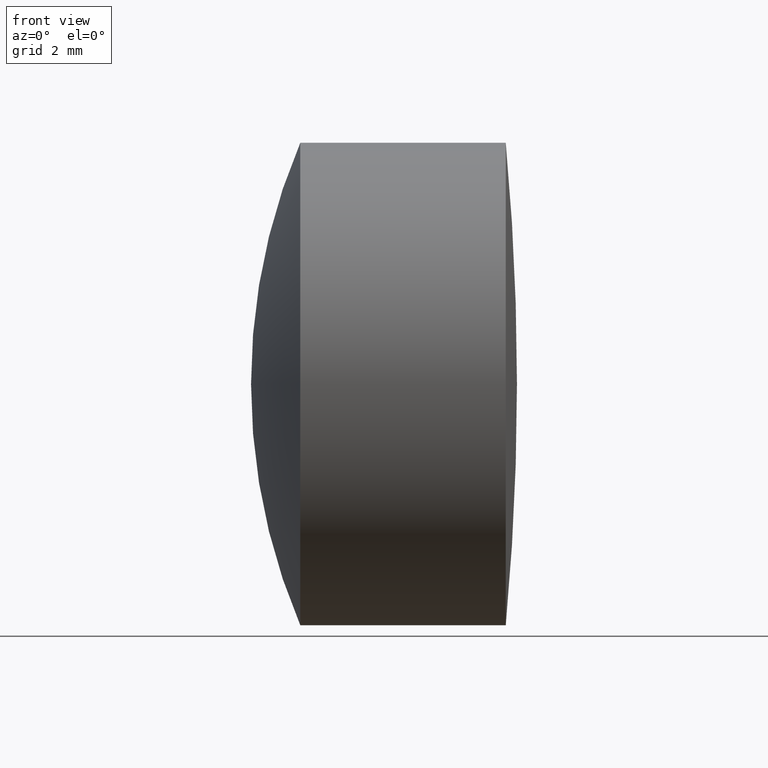
[diagram: clean part render]
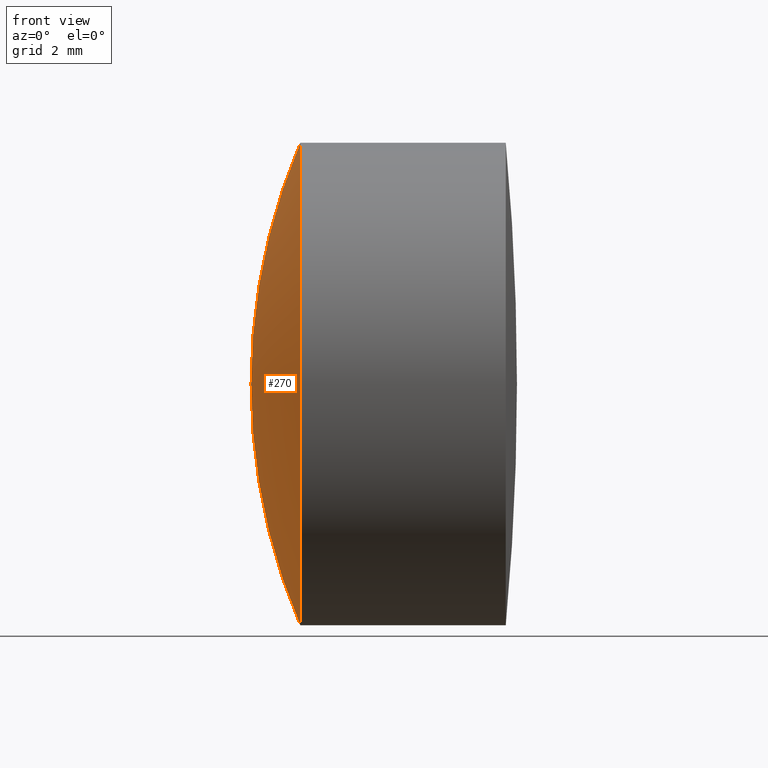
[diagram: same view with one face highlighted and labeled with its STEP entity id]
A machine part, front view. The second image highlights one B-rep face of the part: STEP entity #270.
In plain terms, the highlighted spherical surface has radius 16.2 mm.
Its self-contained STEP definition (entity closure, byte-faithful):
#6 = FACE_OUTER_BOUND ( 'NONE', #289, .T. ) ;
#9 = EDGE_CURVE ( 'NONE', #79, #324, #100, .T. ) ;
#27 = CARTESIAN_POINT ( 'NONE',  ( 269.0089566504702200, 0.0000000000000000000, -2.334349788578312700E-015 ) ) ;
#32 = CARTESIAN_POINT ( 'NONE',  ( 285.2089566504702100, 0.0000000000000000000, -3.326313695887668000E-015 ) ) ;
#52 = SPHERICAL_SURFACE ( 'NONE', #280, 16.19999999999998500 ) ;
#61 = CARTESIAN_POINT ( 'NONE',  ( 270.3053497044990600, 0.0000000000000000000, 0.0000000000000000000 ) ) ;
#69 = CARTESIAN_POINT ( 'NONE',  ( 270.3053497044990600, 7.776507174585691200E-016, -6.350000000000001400 ) ) ;
#79 = VERTEX_POINT ( 'NONE', #113 ) ;
#91 = AXIS2_PLACEMENT_3D ( 'NONE', #260, #312, #310 ) ;
#94 = VERTEX_POINT ( 'NONE', #69 ) ;
#100 = CIRCLE ( 'NONE', #91, 16.19999999999998500 ) ;
#113 = CARTESIAN_POINT ( 'NONE',  ( 270.3053497044990600, 0.0000000000000000000, 6.349999999999997900 ) ) ;
#157 = CARTESIAN_POINT ( 'NONE',  ( 285.2089566504702100, 0.0000000000000000000, -3.326313695887668000E-015 ) ) ;
#173 = AXIS2_PLACEMENT_3D ( 'NONE', #32, #176, #308 ) ;
#176 = DIRECTION ( 'NONE',  ( -0.0000000000000000000, 1.000000000000000000, 1.224646799147353200E-016 ) ) ;
#188 = ORIENTED_EDGE ( 'NONE', *, *, #267, .F. ) ;
#195 = ORIENTED_EDGE ( 'NONE', *, *, #9, .T. ) ;
#197 = EDGE_CURVE ( 'NONE', #94, #79, #205, .T. ) ;
#205 = CIRCLE ( 'NONE', #217, 6.349999999999996100 ) ;
#217 = AXIS2_PLACEMENT_3D ( 'NONE', #61, #333, #281 ) ;
#260 = CARTESIAN_POINT ( 'NONE',  ( 285.2089566504702100, 0.0000000000000000000, -3.326313695887668000E-015 ) ) ;
#267 = EDGE_CURVE ( 'NONE', #94, #324, #303, .T. ) ;
#270 = ADVANCED_FACE ( 'NONE', ( #6 ), #52, .T. ) ;
#280 = AXIS2_PLACEMENT_3D ( 'NONE', #157, #347, #337 ) ;
#281 = DIRECTION ( 'NONE',  ( 0.0000000000000000000, 0.0000000000000000000, 1.000000000000000000 ) ) ;
#289 = EDGE_LOOP ( 'NONE', ( #188, #331, #195 ) ) ;
#303 = CIRCLE ( 'NONE', #173, 16.19999999999998500 ) ;
#308 = DIRECTION ( 'NONE',  ( 0.0000000000000000000, -1.224646799147353200E-016, 1.000000000000000000 ) ) ;
#310 = DIRECTION ( 'NONE',  ( 0.0000000000000000000, 0.0000000000000000000, -1.000000000000000000 ) ) ;
#312 = DIRECTION ( 'NONE',  ( 0.0000000000000000000, -1.000000000000000000, 0.0000000000000000000 ) ) ;
#324 = VERTEX_POINT ( 'NONE', #27 ) ;
#331 = ORIENTED_EDGE ( 'NONE', *, *, #197, .T. ) ;
#333 = DIRECTION ( 'NONE',  ( -1.000000000000000000, -0.0000000000000000000, -0.0000000000000000000 ) ) ;
#337 = DIRECTION ( 'NONE',  ( 0.0000000000000000000, 0.0000000000000000000, 1.000000000000000000 ) ) ;
#347 = DIRECTION ( 'NONE',  ( 0.0000000000000000000, 1.000000000000000000, 0.0000000000000000000 ) ) ;